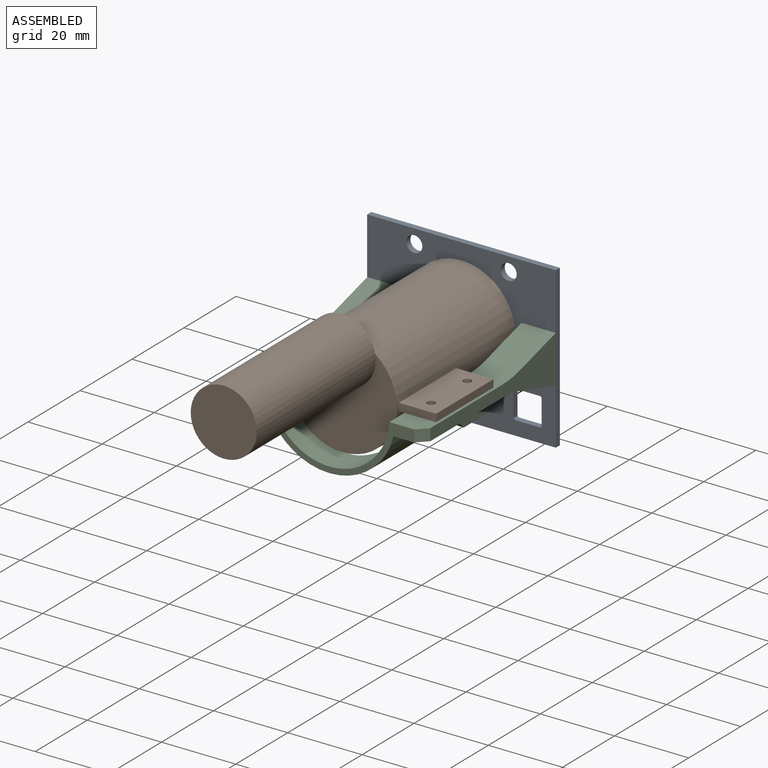
[diagram: assembled view]
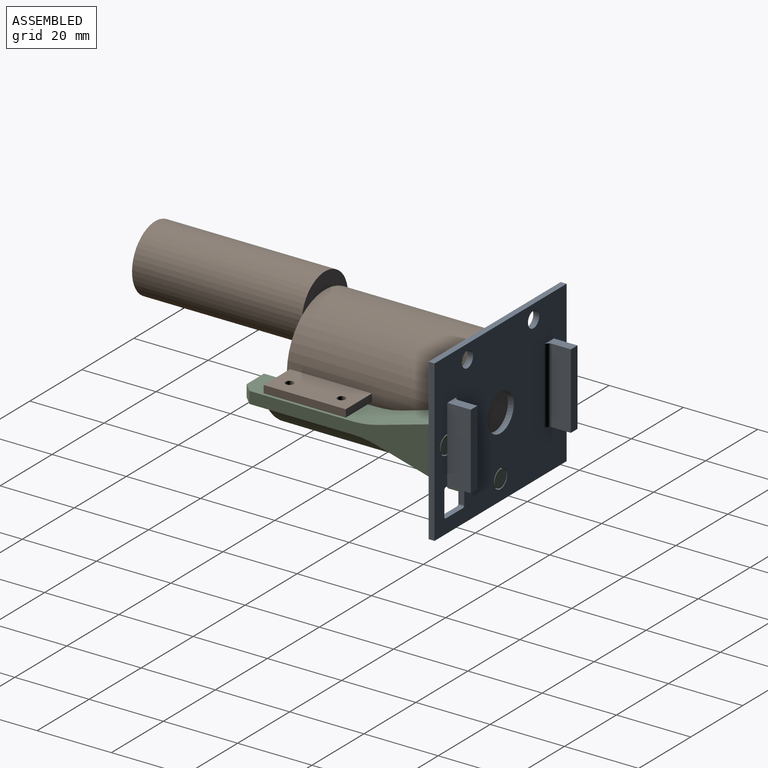
[diagram: assembled view, second angle]
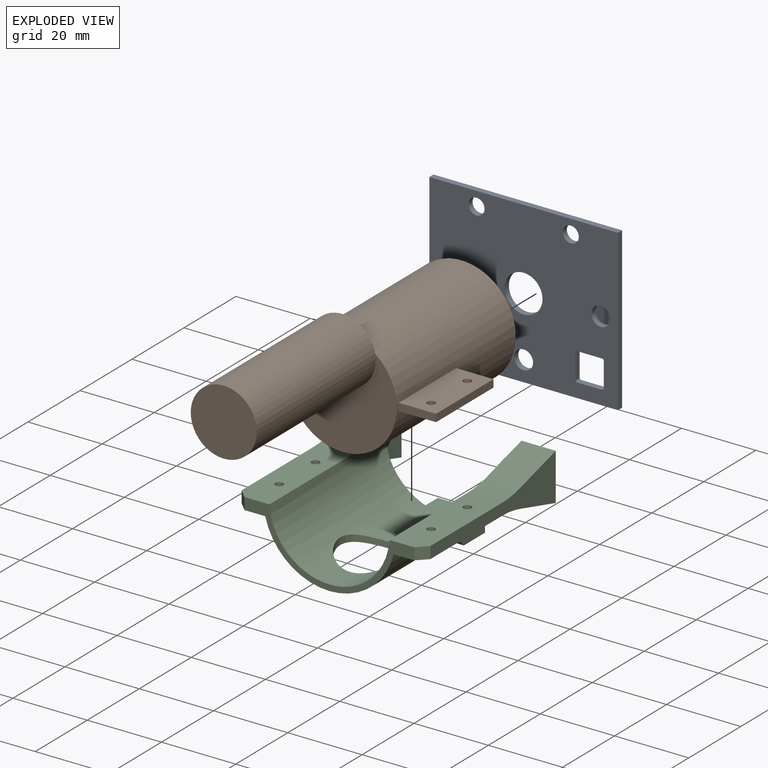
[diagram: exploded view]
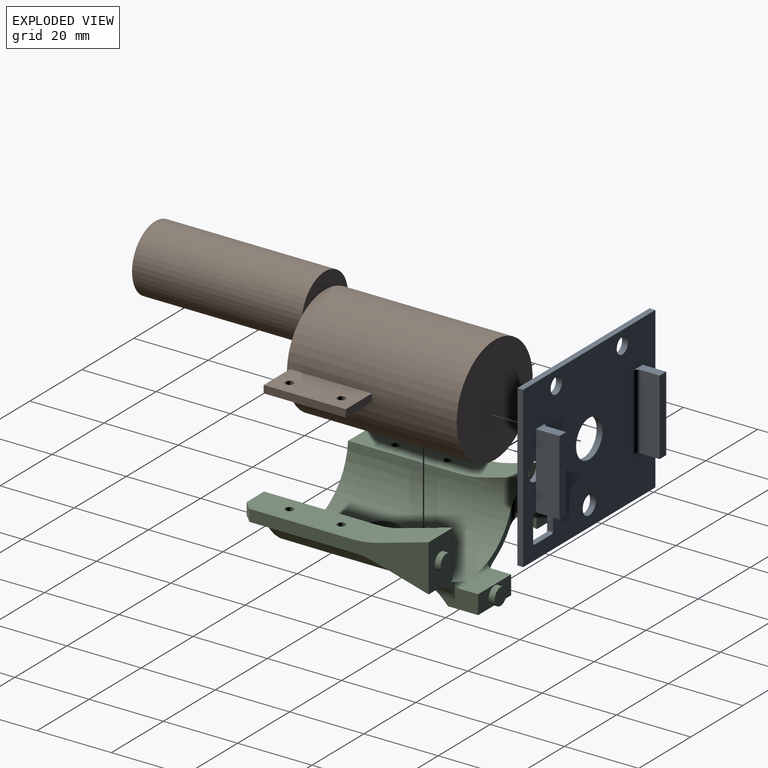
[diagram: exploded view, second angle]
ASSEMBLY  parts=3 mates=5
PART A: 33 faces, bbox 50.8x7.9x43.2 mm
  f0: plane 43.18x1.59mm, normal (1,0,0), area 68.5mm2, adj f1,f3,f4,f5
  f1: plane 50.8x1.59mm, normal (0,0,1), area 80.6mm2, adj f0,f2,f4,f5
  f2: plane 43.18x1.59mm, normal (-1,0,0), area 68.5mm2, adj f1,f3,f4,f5
  f3: plane 50.8x1.59mm, normal (0,0,-1), area 80.6mm2, adj f0,f2,f4,f5
  f4: plane 50.8x43.18mm, normal (0,-1,0), area 1964.5mm2, adj f0,f1,f2,f3,f6,f7,f8,f9
  f5: plane 50.8x43.18mm, normal (0,1,0), area 1827.3mm2, adj f0,f1,f2,f3,f6,f7,f8,f9
  f6: cylinder r=5.08mm len=10.16mm, axis (0,-1,0), area 50.7mm2, adj f4,f5
  f7: plane 6.6x1.59mm, normal (0,0,1), area 10.5mm2, adj f4,f5,f27,f28
  f8: plane 6.6x1.59mm, normal (1,0,0), area 10.5mm2, adj f4,f5,f27,f29
  f9: plane 6.6x1.59mm, normal (-1,0,0), area 10.5mm2, adj f4,f5,f28,f30
  f10: plane 7.94x6.6mm, normal (0,0,-1), area 27mm2, adj f4,f5,f17,f18,f19,f29,f30,f31
  f11: cylinder r=2.16mm len=4.32mm, axis (0,-1,0), area 21.5mm2, adj f4,f5
  f12: cylinder r=2.16mm len=4.32mm, axis (0,-1,0), area 21.5mm2, adj f4,f5
  f13: cylinder r=2.54mm len=5.08mm, axis (0,-1,0), area 25.3mm2, adj f4,f5,f26
  f14: cylinder r=2.54mm len=5.08mm, axis (0,-1,0), area 25.3mm2, adj f4,f5,f20
  f15: cylinder r=2.54mm len=5.08mm, axis (0,-1,0), area 25.3mm2, adj f4,f5
  f16: plane 6.35x3.81mm, normal (0,0,1), area 16.5mm2, adj f5,f17,f18,f19,f31
  f17: plane 20.32x6.35mm, normal (1,0,0), area 129mm2, adj f5,f10,f16,f19,f20
  f18: plane 20.32x5.08mm, normal (-1,0,0), area 103.2mm2, adj f10,f16,f19,f31
  f19: plane 20.32x2.54mm, normal (0,1,0), area 51.6mm2, adj f10,f16,f17,f18
  f20: plane 5.05x2.27mm, normal (0,-1,0), area 8.8mm2, adj f14,f17
  f21: plane 20.32x6.35mm, normal (-1,0,0), area 129mm2, adj f5,f22,f24,f25,f26
  f22: plane 6.35x3.81mm, normal (0,0,1), area 16.5mm2, adj f5,f21,f23,f25,f32
  f23: plane 20.32x5.08mm, normal (1,0,0), area 103.2mm2, adj f22,f24,f25,f32
  f24: plane 6.35x3.81mm, normal (0,0,-1), area 16.5mm2, adj f5,f21,f23,f25,f32
  f25: plane 20.32x2.54mm, normal (0,1,0), area 51.6mm2, adj f21,f22,f23,f24
  f26: plane 5.05x2.27mm, normal (0,-1,0), area 8.8mm2, adj f13,f21
  f27: cylinder r=0.51mm len=1.59mm, axis (0,-1,0), area 1.3mm2, adj f4,f5,f7,f8
  f28: cylinder r=0.51mm len=1.59mm, axis (0,1,0), area 1.3mm2, adj f4,f5,f7,f9
  f29: cylinder r=0.51mm len=1.59mm, axis (0,1,0), area 1.3mm2, adj f4,f5,f8,f10
  f30: cylinder r=0.51mm len=1.59mm, axis (0,-1,0), area 1.3mm2, adj f4,f5,f9,f10
  f31: cylinder r=1.27mm len=20.32mm, axis (0,0,-1), area 40.5mm2, adj f5,f10,f16,f18
  f32: cylinder r=1.27mm len=20.32mm, axis (0,0,1), area 40.5mm2, adj f5,f22,f23,f24
PART B: 20 faces, bbox 49.3x91.4x33.7 mm
  f0: cylinder r=1.08mm len=2.16mm, axis (0,0,1), area 13.8mm2, adj f10,f11
  f1: cylinder r=1.08mm len=2.16mm, axis (0,0,1), area 13.8mm2, adj f10,f11
  f2: cylinder r=1.08mm len=2.16mm, axis (0,0,1), area 13.8mm2, adj f14,f15
  f3: cylinder r=14.61mm len=45.72mm, axis (0,1,0), area 4105.7mm2, adj f4,f5,f6,f10,f11,f12,f13,f14
  f4: plane 29.21x26.29mm, normal (0,-1,0), area 484.1mm2, adj f3,f7
  f5: plane 29.21x29.21mm, normal (0,1,0), area 670.1mm2, adj f3
  f6: plane 17.52x7.36mm, normal (0,1,0), area 62.3mm2, adj f3,f7
  f7: cylinder r=8.89mm len=45.72mm, axis (0,1,0), area 2553.8mm2, adj f4,f6,f8
  f8: plane 17.78x17.78mm, normal (0,-1,0), area 248.3mm2, adj f7
  f9: plane 22.1x2.03mm, normal (-1,0,0), area 44.9mm2, adj f10,f11,f12,f13
  f10: plane 22.1x10.07mm, normal (0,0,-1), area 215.2mm2, adj f0,f1,f3,f9,f12,f13
  f11: plane 22.1x10.07mm, normal (0,0,1), area 215.2mm2, adj f0,f1,f3,f9,f12,f13
  f12: plane 10.07x2.03mm, normal (0,1,0), area 20.4mm2, adj f3,f9,f10,f11
  f13: plane 10.07x2.03mm, normal (0,-1,0), area 20.4mm2, adj f3,f9,f10,f11
  f14: plane 22.1x10.07mm, normal (0,0,1), area 215.2mm2, adj f2,f3,f16,f17,f18,f19
  f15: plane 22.1x10.07mm, normal (0,0,-1), area 215.2mm2, adj f2,f3,f16,f17,f18,f19
  f16: plane 10.07x2.03mm, normal (0,-1,0), area 20.4mm2, adj f3,f14,f15,f17
  f17: plane 22.1x2.03mm, normal (1,0,0), area 44.9mm2, adj f14,f15,f16,f18
  f18: plane 10.07x2.03mm, normal (0,1,0), area 20.4mm2, adj f3,f14,f15,f17
  f19: cylinder r=1.08mm len=2.16mm, axis (0,0,1), area 13.8mm2, adj f14,f15
PART C: 55 faces, bbox 51.7x53.3x26 mm
  f0: plane 13.44x8.6mm, normal (0,1,0), area 20.2mm2, adj f5,f6,f36,f40,f43,f47
  f1: plane 12.7x9.24mm, normal (0,1,0), area 100.9mm2, adj f3,f4,f6,f14,f24,f25,f51
  f2: plane 12.7x9.24mm, normal (0,1,0), area 100.9mm2, adj f6,f8,f13,f19,f20,f22,f49
  f3: plane 13.92x9.38mm, normal (0,-0.27,-0.96), area 128.4mm2, adj f1,f5,f14,f24,f31,f47
  f4: plane 13.82x9.34mm, normal (0,-0.27,0.96), area 132.5mm2, adj f1,f6,f14,f25,f26,f30
  f5: cylinder r=17.78mm len=45.46mm, axis (0,1,0), area 1659.3mm2, adj f0,f3,f9,f11,f12,f19,f23,f27
  f6: cylinder r=16.19mm len=50.8mm, axis (0,1,0), area 1980.7mm2, adj f0,f1,f2,f4,f7,f8,f10,f12
  f7: plane 30.19x9.24mm, normal (0,0,1), area 268.4mm2, adj f6,f12,f13,f15,f18,f29,f32
  f8: plane 13.82x9.34mm, normal (0,-0.27,0.96), area 132.5mm2, adj f2,f6,f13,f20,f21,f32
  f9: plane 30.19x8.12mm, normal (0,0,-1), area 234.6mm2, adj f5,f12,f13,f15,f18,f29,f33
  f10: plane 30.19x9.24mm, normal (0,0,1), area 268.4mm2, adj f6,f12,f14,f16,f17,f28,f30
  f11: plane 30.19x8.12mm, normal (0,0,-1), area 234.6mm2, adj f5,f12,f14,f16,f17,f28,f31
  f12: plane 45.72x16.76mm, normal (0,-1,0), area 115.1mm2, adj f5,f6,f7,f9,f10,f11,f28,f29
  f13: plane 48.26x12.7mm, normal (1,0,0), area 236mm2, adj f2,f7,f8,f9,f19,f29,f32,f33
  f14: plane 48.26x12.7mm, normal (-1,0,0), area 236mm2, adj f1,f3,f4,f10,f11,f28,f30,f31
  f15: cylinder r=1.08mm len=3.18mm, axis (0,0,1), area 21.5mm2, adj f7,f9
  f16: cylinder r=1.08mm len=3.18mm, axis (0,0,1), area 21.5mm2, adj f10,f11
  f17: cylinder r=1.08mm len=3.18mm, axis (0,0,1), area 21.5mm2, adj f10,f11
  f18: cylinder r=1.08mm len=3.18mm, axis (0,0,1), area 21.5mm2, adj f7,f9
  f19: plane 13.92x9.38mm, normal (0,-0.27,-0.96), area 128.4mm2, adj f2,f5,f13,f22,f33,f48
  f20: plane 6.35x2.73mm, normal (-1,0,0), area 11.7mm2, adj f2,f6,f8,f21
  f21: plane 0.97x0.09mm, normal (0,1,0), area 0mm2, adj f6,f8,f20
  f22: plane 7.94x5.08mm, normal (-1,0,0), area 36.7mm2, adj f2,f6,f19,f48
  f23: plane 13.44x8.6mm, normal (0,1,0), area 20.2mm2, adj f5,f6,f37,f41,f46,f48
  f24: plane 7.94x5.08mm, normal (1,0,0), area 36.7mm2, adj f1,f3,f6,f47
  f25: plane 6.35x2.73mm, normal (1,0,0), area 11.7mm2, adj f1,f4,f6,f26
  f26: plane 0.97x0.09mm, normal (0,1,0), area 0mm2, adj f4,f6,f25
  f27: cylinder r=8.89mm len=17.78mm, axis (0,0,1), area 96mm2, adj f5,f6
  f28: plane 3.18x2.54mm, normal (-0.71,-0.71,0), area 11.4mm2, adj f10,f11,f12,f14
  f29: plane 3.18x2.54mm, normal (0.71,-0.71,0), area 11.4mm2, adj f7,f9,f12,f13
  f30: cylinder r=25.4mm len=9.24mm, axis (-1,0,0), area 63.5mm2, adj f4,f6,f10,f14
  f31: cylinder r=25.4mm len=8.37mm, axis (1,0,0), area 56.8mm2, adj f3,f5,f11,f14
  f32: cylinder r=25.4mm len=9.24mm, axis (-1,0,0), area 63.5mm2, adj f6,f7,f8,f13
  f33: cylinder r=25.4mm len=8.37mm, axis (1,0,0), area 56.8mm2, adj f5,f9,f13,f19
  f34: plane 13.64x7.29mm, normal (0,0,1), area 70.7mm2, adj f36,f37,f38,f43,f44,f45,f46
  f35: plane 12.7x8.13mm, normal (0,0,-1), area 103.2mm2, adj f36,f37,f38,f39
  f36: plane 9.6x6.35mm, normal (-1,0,0), area 36.3mm2, adj f0,f34,f35,f38,f39,f40,f43
  f37: plane 9.6x6.35mm, normal (1,0,0), area 36.3mm2, adj f23,f34,f35,f38,f39,f41,f46
  f38: plane 12.7x5.08mm, normal (0,1,0), area 48.1mm2, adj f34,f35,f36,f37,f54
  f39: plane 13.17x2.99mm, normal (0,-0.71,-0.71), area 41.6mm2, adj f35,f36,f37,f40,f41,f42
  f40: cylinder r=5.08mm len=10.44mm, axis (0,1,0), area 34.9mm2, adj f0,f5,f36,f39,f42
  f41: cylinder r=5.08mm len=10.44mm, axis (0,1,0), area 34.9mm2, adj f5,f23,f37,f39,f42
  f42: bspline ~22.86x6.65mm, area 69.7mm2, adj f5,f39,f40,f41
  f43: cylinder r=1.27mm len=1.27mm, axis (-1,0,0), area 0.1mm2, adj f0,f34,f36,f44
  f44: bspline ~6.29x1.27mm, area 4mm2, adj f6,f34,f43
  f45: bspline ~6.81x1.49mm, area 4mm2, adj f6,f34,f46
  f46: cylinder r=1.27mm len=1.27mm, axis (-1,0,0), area 0.1mm2, adj f23,f34,f37,f45
  f47: cylinder r=1.27mm len=8.7mm, axis (0,0,1), area 9.2mm2, adj f0,f3,f5,f6,f24
  f48: cylinder r=1.27mm len=8.7mm, axis (0,0,-1), area 9.2mm2, adj f5,f6,f19,f22,f23
  f49: cylinder r=2.29mm len=4.57mm, axis (0,-1,0), area 22.8mm2, adj f2,f50
  f50: plane 4.57x4.57mm, normal (0,1,0), area 16.4mm2, adj f49
  f51: cylinder r=2.29mm len=4.57mm, axis (0,-1,0), area 22.8mm2, adj f1,f52
  f52: plane 4.57x4.57mm, normal (0,1,0), area 16.4mm2, adj f51
  f53: plane 4.57x4.57mm, normal (0,1,0), area 16.4mm2, adj f54
  f54: cylinder r=2.29mm len=4.57mm, axis (0,-1,0), area 22.8mm2, adj f38,f53
PLACE A t=(11.63,8.93,-0.59)mm fixed
PLACE B rot(axis=(0.03,1,0),0deg) t=(11.62,7.35,2.02)mm
PLACE C rot(axis=(-0.29,0.96,0),0deg) t=(11.62,-18.05,-0.59)mm
MATE revolute C.f49 <-> A.f14  axis (0,1,0) through (32.4,8.93,-0.59)mm
MATE pin_slot C.f51 <-> A.f13  axis (0,-1,0) through (-9.16,8.14,-0.59)mm
MATE planar B.f15 <-> C.f15  axis (0,0,-1) through (31.2,-26.56,1)mm
MATE slider B.f2 <-> C.f18  axis (0,0,1) through (32.07,-33.55,3.03)mm
MATE planar C.f1 <-> A.f4  axis (0,1,0) through (-9.16,7.35,-6.94)mm
